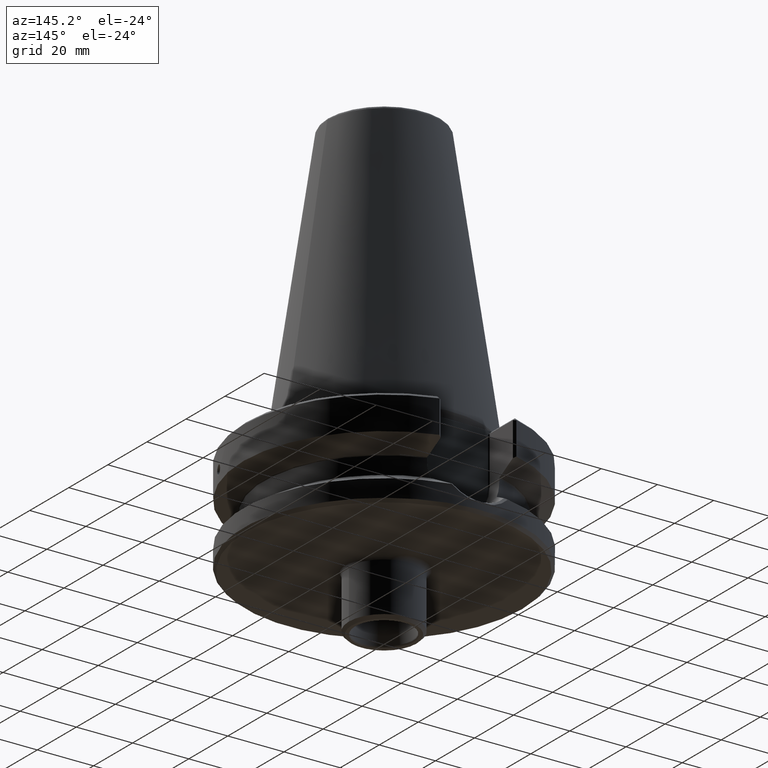
[diagram: clean part render]
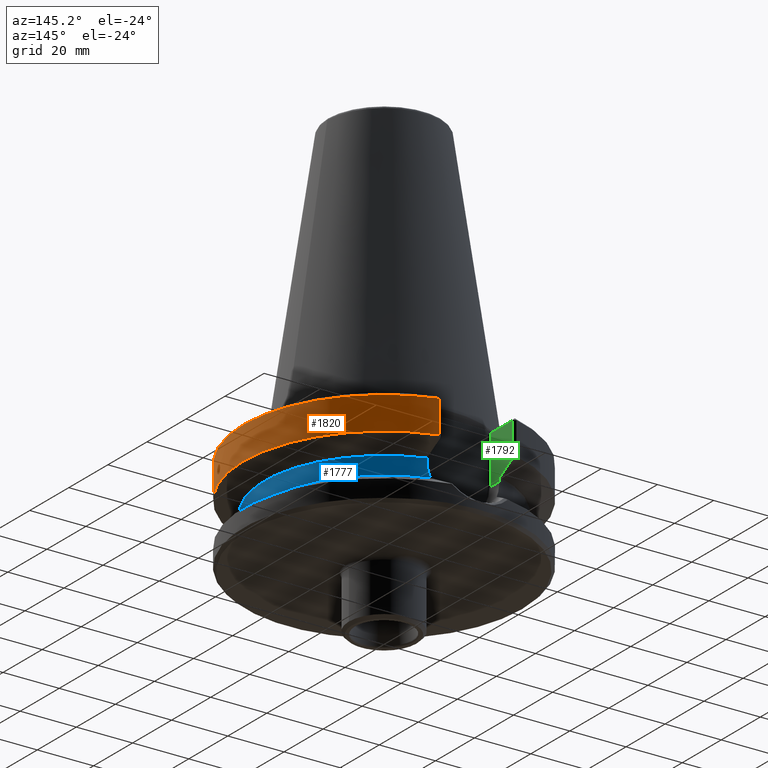
[diagram: same view with three faces highlighted in distinct colors, each labeled with its STEP entity id]
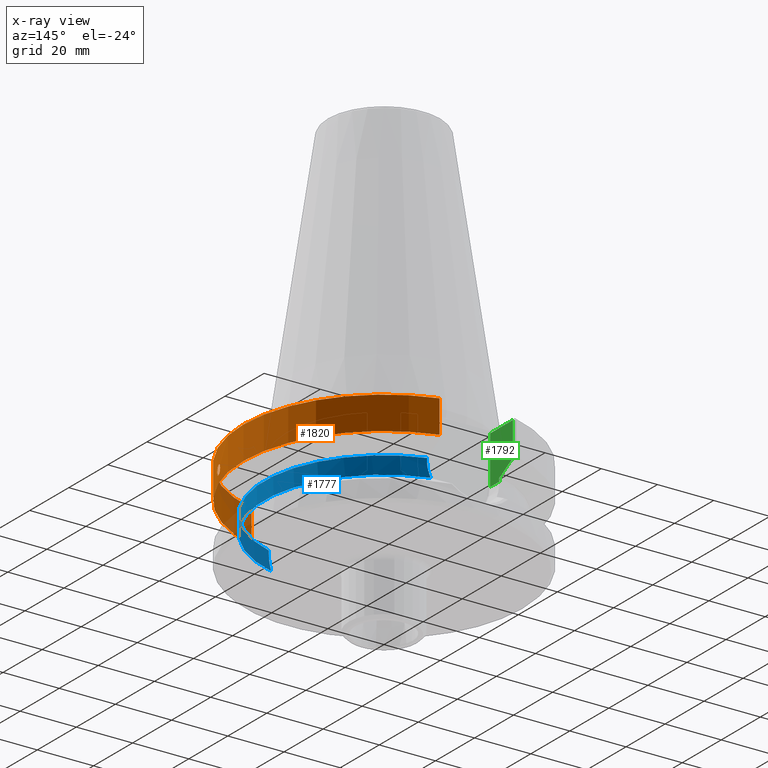
[diagram: x-ray of the same camera — body ghosted, the three highlighted faces saturated]
A machine part, auxiliary view with three faces highlighted in distinct colors.
The next image is the same camera in x-ray (body ghosted, the three faces saturated) — at least one of them is partly hidden behind the body in this view.
Their STEP definitions:

[orange] entity #1820 — the highlighted cylindrical surface (partial cylindrical patch) has radius 50 mm, axis along (0, 0, 1).
#79=LINE('',#2745,#133);
#80=LINE('',#2757,#134);
#133=VECTOR('',#2155,1000.);
#134=VECTOR('',#2160,1000.);
#237=B_SPLINE_CURVE_WITH_KNOTS('',3,(#2928,#2929,#2930,#2931,#2932,#2933,
#2934,#2935,#2936,#2937,#2938),.UNSPECIFIED.,.T.,.F.,(1,1,1,1,1,1,1,1,1,
1,1,1,1,1,1),(-0.0038008082826776,-0.00253387218845173,-0.00126693609422587,
0.,0.00126693609422587,0.00253387218845173,0.0038008082826776,0.00506774437690347,
0.00633468047112933,0.0076016165653552,0.00886855265958107,0.0101354887538069,
0.0114024248480328,0.0126693609422587,0.0139362970364845),.UNSPECIFIED.);
#487=ORIENTED_EDGE('',*,*,#708,.T.);
#488=ORIENTED_EDGE('',*,*,#670,.T.);
#489=ORIENTED_EDGE('',*,*,#709,.F.);
#490=ORIENTED_EDGE('',*,*,#673,.T.);
#491=ORIENTED_EDGE('',*,*,#707,.T.);
#670=EDGE_CURVE('',#813,#814,#79,.T.);
#673=EDGE_CURVE('',#816,#815,#80,.F.);
#707=EDGE_CURVE('',#815,#813,#888,.T.);
#708=EDGE_CURVE('',#831,#831,#237,.T.);
#709=EDGE_CURVE('',#816,#814,#889,.T.);
#813=VERTEX_POINT('',#2742);
#814=VERTEX_POINT('',#2744);
#815=VERTEX_POINT('',#2756);
#816=VERTEX_POINT('',#2758);
#831=VERTEX_POINT('',#2939);
#888=CIRCLE('',#1943,50.);
#889=CIRCLE('',#1945,50.);
#977=EDGE_LOOP('',(#487));
#978=EDGE_LOOP('',(#488,#489,#490,#491));
#1104=FACE_BOUND('',#977,.T.);
#1105=FACE_BOUND('',#978,.T.);
#1181=CYLINDRICAL_SURFACE('',#1944,50.);
#1820=ADVANCED_FACE('',(#1104,#1105),#1181,.T.);
#1943=AXIS2_PLACEMENT_3D('',#2926,#2229,#2230);
#1944=AXIS2_PLACEMENT_3D('',#2927,#2231,#2232);
#1945=AXIS2_PLACEMENT_3D('',#2940,#2233,#2234);
#2155=DIRECTION('',(0.,0.,1.));
#2160=DIRECTION('',(0.,0.,1.));
#2229=DIRECTION('',(0.,0.,1.));
#2230=DIRECTION('',(1.,0.,0.));
#2231=DIRECTION('',(0.,0.,1.));
#2232=DIRECTION('',(1.,0.,0.));
#2233=DIRECTION('',(0.,0.,1.));
#2234=DIRECTION('',(1.,0.,0.));
#2742=CARTESIAN_POINT('',(13.6815495387898,48.0917373591102,-15.6655789870754));
#2744=CARTESIAN_POINT('',(13.6815495387898,48.0917373591102,-4.));
#2745=CARTESIAN_POINT('',(13.6815495387898,48.0917373591102,60.));
#2756=CARTESIAN_POINT('',(13.6815495387898,-48.0917373591102,-15.6655789870754));
#2757=CARTESIAN_POINT('',(13.6815495387898,-48.0917373591102,60.));
#2758=CARTESIAN_POINT('',(13.6815495387898,-48.0917373591102,-4.));
#2926=CARTESIAN_POINT('',(0.,0.,-15.6655789870754));
#2927=CARTESIAN_POINT('',(0.,0.,60.));
#2928=CARTESIAN_POINT('',(46.5382107863695,-18.2892216558383,-12.7716760200285));
#2929=CARTESIAN_POINT('',(46.339212816846,-18.7781845634731,-11.4996741406341));
#2930=CARTESIAN_POINT('',(46.5380468274651,-18.2895969723341,-10.2296274174351));
#2931=CARTESIAN_POINT('',(46.9903464855568,-17.104490044576,-9.70386989713697));
#2932=CARTESIAN_POINT('',(47.4065817126192,-15.9033535689276,-10.2288943735064));
#2933=CARTESIAN_POINT('',(47.5680966360525,-15.4018986128893,-11.4997594846144));
#2934=CARTESIAN_POINT('',(47.4071162614764,-15.9017085846116,-12.7686153720098));
#2935=CARTESIAN_POINT('',(46.9914583233558,-17.1014605010728,-13.2964259010718));
#2936=CARTESIAN_POINT('',(46.5382107863695,-18.2892216558383,-12.7716760200285));
#2937=CARTESIAN_POINT('',(46.339212816846,-18.7781845634731,-11.4996741406341));
#2938=CARTESIAN_POINT('',(46.5380468274651,-18.2895969723341,-10.2296274174351));
#2939=CARTESIAN_POINT('',(46.4055181468697,-18.6152594803441,-11.5));
#2940=CARTESIAN_POINT('',(0.,0.,-4.));

[blue] entity #1777 — the highlighted cylindrical surface (partial cylindrical patch) has radius 42.5 mm, axis along (0, 0, 1).
#45=LINE('',#2485,#99);
#46=LINE('',#2489,#100);
#99=VECTOR('',#2059,1000.);
#100=VECTOR('',#2062,1000.);
#196=B_SPLINE_CURVE_WITH_KNOTS('',3,(#2479,#2480,#2481,#2482),
 .UNSPECIFIED.,.F.,.F.,(4,4),(0.,0.00527700908487507),.UNSPECIFIED.);
#197=B_SPLINE_CURVE_WITH_KNOTS('',3,(#2491,#2492,#2493,#2494),
 .UNSPECIFIED.,.F.,.F.,(4,4),(3.46944695195361E-18,0.00527668115757095),
 .UNSPECIFIED.);
#269=ORIENTED_EDGE('',*,*,#599,.T.);
#270=ORIENTED_EDGE('',*,*,#600,.T.);
#271=ORIENTED_EDGE('',*,*,#601,.T.);
#272=ORIENTED_EDGE('',*,*,#602,.T.);
#273=ORIENTED_EDGE('',*,*,#603,.T.);
#274=ORIENTED_EDGE('',*,*,#604,.T.);
#599=EDGE_CURVE('',#764,#765,#196,.T.);
#600=EDGE_CURVE('',#765,#766,#45,.T.);
#601=EDGE_CURVE('',#766,#767,#869,.T.);
#602=EDGE_CURVE('',#767,#768,#46,.F.);
#603=EDGE_CURVE('',#768,#769,#197,.T.);
#604=EDGE_CURVE('',#769,#764,#870,.T.);
#764=VERTEX_POINT('',#2483);
#765=VERTEX_POINT('',#2484);
#766=VERTEX_POINT('',#2486);
#767=VERTEX_POINT('',#2488);
#768=VERTEX_POINT('',#2490);
#769=VERTEX_POINT('',#2495);
#869=CIRCLE('',#1880,42.5);
#870=CIRCLE('',#1881,42.5);
#929=EDGE_LOOP('',(#269,#270,#271,#272,#273,#274));
#1055=FACE_BOUND('',#929,.T.);
#1171=CYLINDRICAL_SURFACE('',#1879,42.5);
#1777=ADVANCED_FACE('',(#1055),#1171,.T.);
#1879=AXIS2_PLACEMENT_3D('',#2478,#2057,#2058);
#1880=AXIS2_PLACEMENT_3D('',#2487,#2060,#2061);
#1881=AXIS2_PLACEMENT_3D('',#2496,#2063,#2064);
#2057=DIRECTION('',(0.,0.,1.));
#2058=DIRECTION('',(1.,0.,0.));
#2059=DIRECTION('',(0.,0.,1.));
#2060=DIRECTION('',(0.,0.,-1.));
#2061=DIRECTION('',(-1.,0.,0.));
#2062=DIRECTION('',(0.,0.,1.));
#2063=DIRECTION('',(0.,0.,1.));
#2064=DIRECTION('',(1.,0.,0.));
#2478=CARTESIAN_POINT('',(0.,0.,-3.00000000000001));
#2479=CARTESIAN_POINT('',(11.7728501222091,40.8368705950884,-26.3));
#2480=CARTESIAN_POINT('',(12.4830362895259,40.6321312214575,-24.6765212996727));
#2481=CARTESIAN_POINT('',(12.85,40.5108318848182,-22.9344742520138));
#2482=CARTESIAN_POINT('',(12.85,40.5108318848182,-21.15));
#2483=CARTESIAN_POINT('',(11.7728501222092,40.8368705950885,-26.3));
#2484=CARTESIAN_POINT('',(12.85,40.5108318848182,-21.15));
#2485=CARTESIAN_POINT('',(12.85,40.5108318848182,-3.00000000000001));
#2486=CARTESIAN_POINT('',(12.85,40.5108318848029,-20.1000000000019));
#2487=CARTESIAN_POINT('',(0.,0.,-20.1));
#2488=CARTESIAN_POINT('',(12.85,-40.5108318848181,-20.1));
#2489=CARTESIAN_POINT('',(12.85,-40.5108318848182,-3.00000000000001));
#2490=CARTESIAN_POINT('',(12.85,-40.5108318848182,-21.15));
#2491=CARTESIAN_POINT('',(12.85,-40.5108318848182,-21.15));
#2492=CARTESIAN_POINT('',(12.85,-40.5108318848182,-22.9347280165883));
#2493=CARTESIAN_POINT('',(12.4832012780856,-40.6320836569513,-24.676144137423));
#2494=CARTESIAN_POINT('',(11.7728501222091,-40.8368705950884,-26.3));
#2495=CARTESIAN_POINT('',(11.7728501222091,-40.8368705950884,-26.3));
#2496=CARTESIAN_POINT('',(0.,0.,-26.3));

[green] entity #1792 — the highlighted planar face has unit normal (1, 0, 0).
#43=LINE('',#2473,#97);
#47=LINE('',#2498,#101);
#73=LINE('',#2679,#127);
#74=LINE('',#2681,#128);
#75=LINE('',#2683,#129);
#76=LINE('',#2685,#130);
#97=VECTOR('',#2053,1000.);
#101=VECTOR('',#2067,1000.);
#127=VECTOR('',#2139,1000.);
#128=VECTOR('',#2140,1000.);
#129=VECTOR('',#2141,1000.);
#130=VECTOR('',#2142,1000.);
#159=PLANE('',#1905);
#202=B_SPLINE_CURVE_WITH_KNOTS('',3,(#2544,#2545,#2546,#2547),
 .UNSPECIFIED.,.F.,.F.,(4,4),(0.00248287989206239,0.00312267173677355),
 .UNSPECIFIED.);
#214=B_SPLINE_CURVE_WITH_KNOTS('',3,(#2674,#2675,#2676,#2677),
 .UNSPECIFIED.,.F.,.F.,(4,4),(0.0170552776094909,0.0243926911652029),
 .UNSPECIFIED.);
#355=ORIENTED_EDGE('',*,*,#656,.F.);
#356=ORIENTED_EDGE('',*,*,#657,.T.);
#357=ORIENTED_EDGE('',*,*,#658,.T.);
#358=ORIENTED_EDGE('',*,*,#659,.T.);
#359=ORIENTED_EDGE('',*,*,#660,.T.);
#360=ORIENTED_EDGE('',*,*,#605,.F.);
#361=ORIENTED_EDGE('',*,*,#621,.T.);
#362=ORIENTED_EDGE('',*,*,#596,.F.);
#596=EDGE_CURVE('',#760,#762,#43,.T.);
#605=EDGE_CURVE('',#770,#771,#47,.F.);
#621=EDGE_CURVE('',#770,#762,#202,.T.);
#656=EDGE_CURVE('',#806,#760,#214,.T.);
#657=EDGE_CURVE('',#806,#807,#73,.T.);
#658=EDGE_CURVE('',#807,#808,#74,.T.);
#659=EDGE_CURVE('',#808,#809,#75,.T.);
#660=EDGE_CURVE('',#809,#771,#76,.T.);
#760=VERTEX_POINT('',#2471);
#762=VERTEX_POINT('',#2474);
#770=VERTEX_POINT('',#2499);
#771=VERTEX_POINT('',#2500);
#806=VERTEX_POINT('',#2678);
#807=VERTEX_POINT('',#2680);
#808=VERTEX_POINT('',#2682);
#809=VERTEX_POINT('',#2684);
#945=EDGE_LOOP('',(#355,#356,#357,#358,#359,#360,#361,#362));
#1071=FACE_BOUND('',#945,.T.);
#1792=ADVANCED_FACE('',(#1071),#159,.T.);
#1905=AXIS2_PLACEMENT_3D('',#2673,#2137,#2138);
#2053=DIRECTION('',(0.,-1.,0.));
#2067=DIRECTION('',(0.,0.,1.));
#2137=DIRECTION('',(1.,0.,0.));
#2138=DIRECTION('',(0.,0.,-1.));
#2139=DIRECTION('',(0.,0.,1.));
#2140=DIRECTION('',(0.,-1.,0.));
#2141=DIRECTION('',(0.,0.,-1.));
#2142=DIRECTION('',(0.,1.,0.));
#2471=CARTESIAN_POINT('',(-12.85,41.0478372314266,-19.7));
#2473=CARTESIAN_POINT('',(-12.85,0.,-19.7));
#2474=CARTESIAN_POINT('',(-12.85,40.930276080183,-19.7));
#2498=CARTESIAN_POINT('',(-12.85,40.5108318848182,-3.00000000000001));
#2499=CARTESIAN_POINT('',(-12.85,40.5108318848182,-20.1));
#2500=CARTESIAN_POINT('',(-12.85,40.5108318848182,-21.15));
#2544=CARTESIAN_POINT('',(-12.85,40.5108318848182,-20.1));
#2545=CARTESIAN_POINT('',(-12.85,40.5108318848182,-19.8840002920184));
#2546=CARTESIAN_POINT('',(-12.85,40.7155208642506,-19.7));
#2547=CARTESIAN_POINT('',(-12.85,40.930276080183,-19.7));
#2673=CARTESIAN_POINT('',(-12.85,35.35,-3.00000000000001));
#2674=CARTESIAN_POINT('',(-12.85,47.4652342848543,-16.1425367063338));
#2675=CARTESIAN_POINT('',(-12.85,45.3287869318329,-17.3331553411163));
#2676=CARTESIAN_POINT('',(-12.85,43.1900379480942,-18.5196837677512));
#2677=CARTESIAN_POINT('',(-12.85,41.0478372314266,-19.7));
#2678=CARTESIAN_POINT('',(-12.85,47.4652342848543,-16.1425367063338));
#2679=CARTESIAN_POINT('',(-12.85,47.4652342848543,-3.00000000000001));
#2680=CARTESIAN_POINT('',(-12.85,47.4652342848543,-4.00000000000001));
#2681=CARTESIAN_POINT('',(-12.85,35.35,-4.00000000000001));
#2682=CARTESIAN_POINT('',(-12.85,35.85,-4.00000000000001));
#2683=CARTESIAN_POINT('',(-12.85,35.85,-21.15));
#2684=CARTESIAN_POINT('',(-12.85,35.85,-21.15));
#2685=CARTESIAN_POINT('',(-12.85,35.35,-21.15));